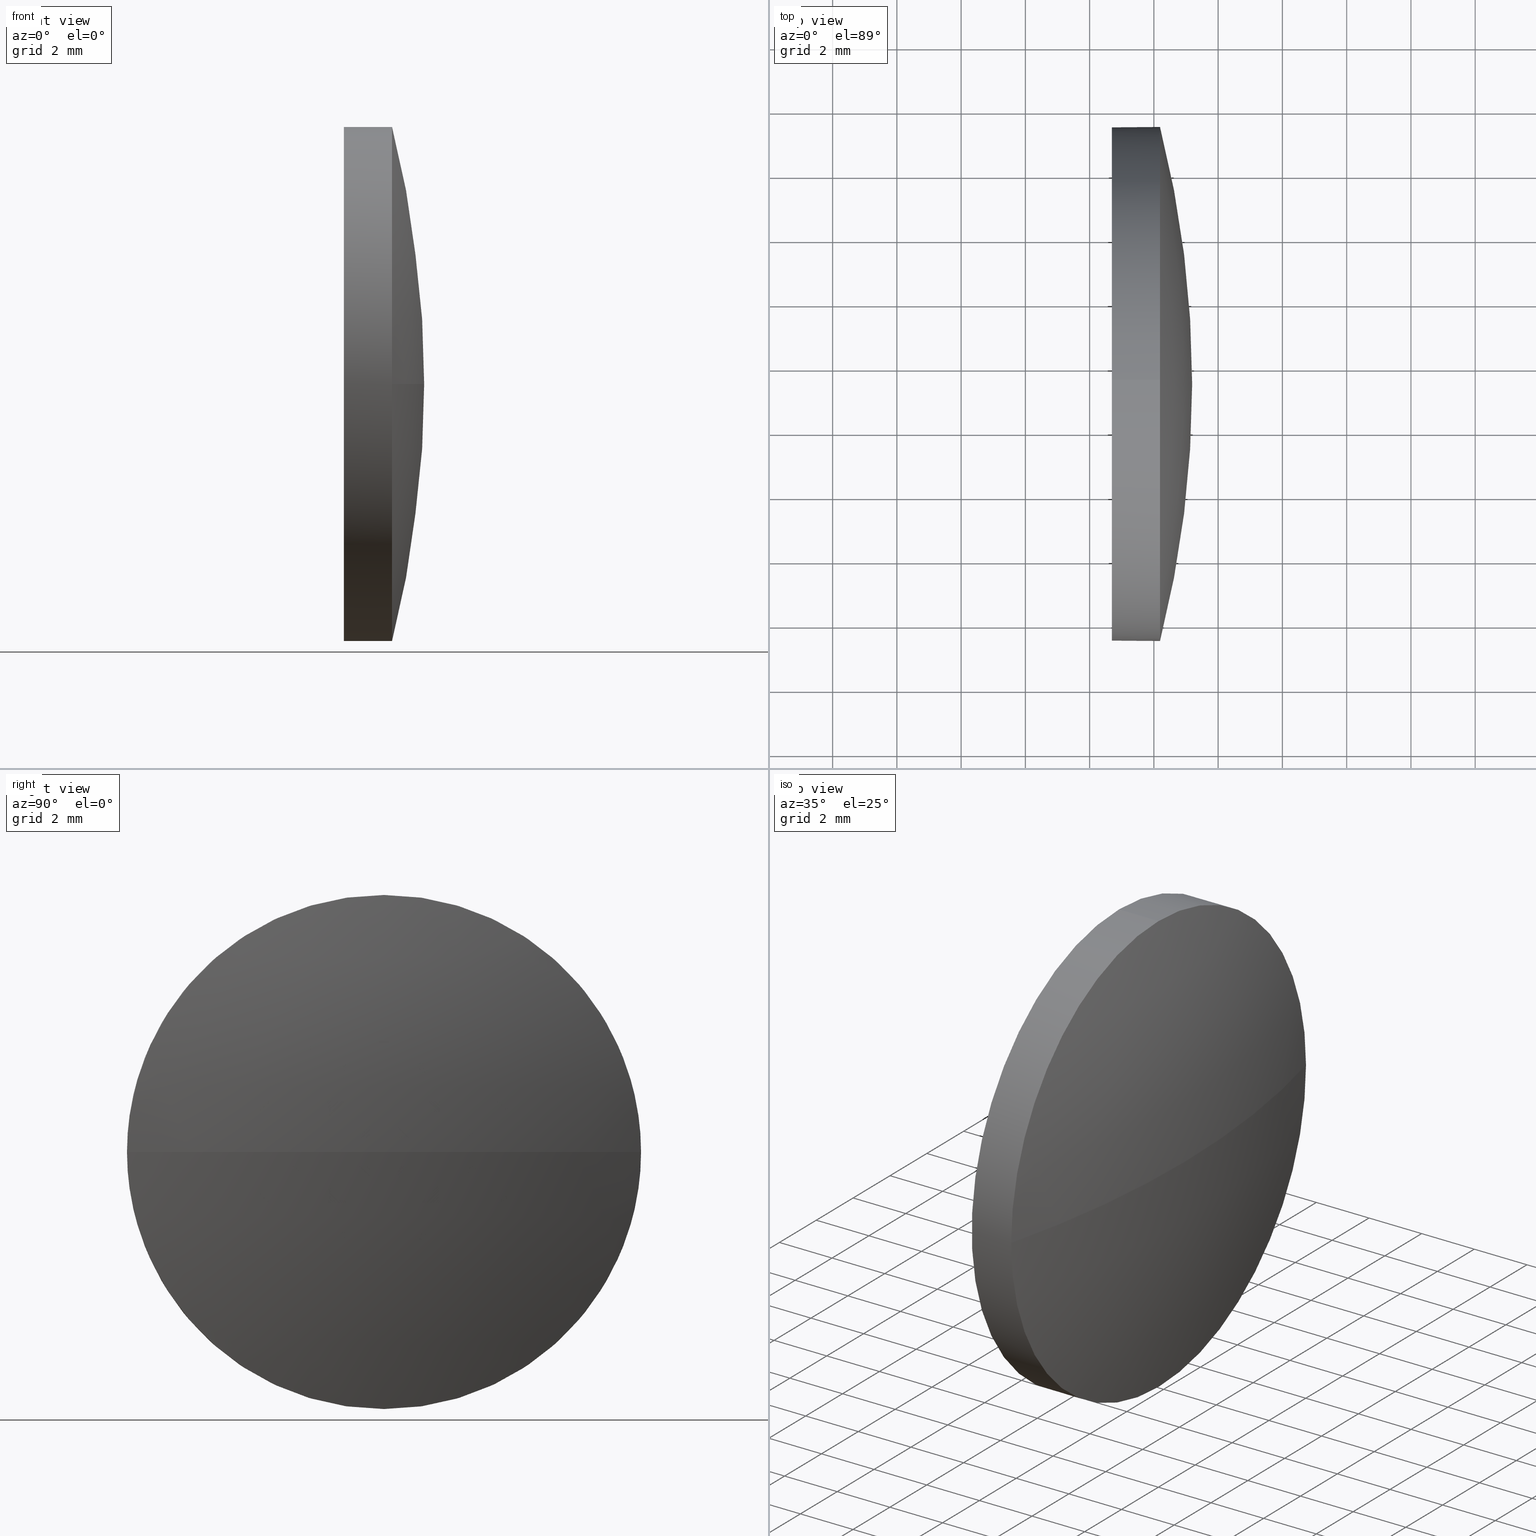
[diagram: canonical four-view strip — front | top / right | iso, engineering-drawing reading convention]
A machine part, canonical four-view strip (front | top / right | iso — engineering-drawing reading convention). The complete STEP part file that produces these views, byte-faithful:
ISO-10303-21;
HEADER;
FILE_DESCRIPTION (( 'STEP AP214' ),
    '1' );
FILE_NAME ('100030.STEP',
    '2019-04-22T08:35:40',
    ( '' ),
    ( '' ),
    'SwSTEP 2.0',
    'SolidWorks 2016',
    '' );
FILE_SCHEMA (( 'AUTOMOTIVE_DESIGN' ));
ENDSEC;

DATA;
#1 = VERTEX_POINT ( 'NONE', #163 ) ;
#2 = CIRCLE ( 'NONE', #118, 7.999999999999979600 ) ;
#3 = MECHANICAL_DESIGN_GEOMETRIC_PRESENTATION_REPRESENTATION (  '', ( #50 ), #15 ) ;
#4 = VERTEX_POINT ( 'NONE', #40 ) ;
#5 = PRODUCT_DEFINITION_FORMATION_WITH_SPECIFIED_SOURCE ( '�κ�', '', #107, .NOT_KNOWN. ) ;
#6 = ORIENTED_EDGE ( 'NONE', *, *, #174, .T. ) ;
#7 = AXIS2_PLACEMENT_3D ( 'NONE', #160, #134, #11 ) ;
#8 = CIRCLE ( 'NONE', #178, 7.999999999999979600 ) ;
#9 = EDGE_CURVE ( 'NONE', #12, #4, #2, .T. ) ;
#10 =( GEOMETRIC_REPRESENTATION_CONTEXT ( 3 ) GLOBAL_UNCERTAINTY_ASSIGNED_CONTEXT ( ( #153 ) ) GLOBAL_UNIT_ASSIGNED_CONTEXT ( ( #92, #90, #100 ) ) REPRESENTATION_CONTEXT ( 'NONE', 'WORKASPACE' ) );
#11 = DIRECTION ( 'NONE',  ( 0.0000000000000000000, 0.0000000000000000000, 1.000000000000000000 ) ) ;
#12 = VERTEX_POINT ( 'NONE', #124 ) ;
#13 = DIRECTION ( 'NONE',  ( 0.0000000000000000000, 0.0000000000000000000, 1.000000000000000000 ) ) ;
#14 = APPLICATION_PROTOCOL_DEFINITION ( 'draft international standard', 'automotive_design', 1998, #127 ) ;
#15 =( GEOMETRIC_REPRESENTATION_CONTEXT ( 3 ) GLOBAL_UNCERTAINTY_ASSIGNED_CONTEXT ( ( #166 ) ) GLOBAL_UNIT_ASSIGNED_CONTEXT ( ( #154, #59, #137 ) ) REPRESENTATION_CONTEXT ( 'NONE', 'WORKASPACE' ) );
#16 = APPLICATION_PROTOCOL_DEFINITION ( 'draft international standard', 'automotive_design', 1998, #101 ) ;
#17 = DIRECTION ( 'NONE',  ( 0.0000000000000000000, 0.0000000000000000000, 1.000000000000000000 ) ) ;
#18 = EDGE_CURVE ( 'NONE', #1, #4, #48, .T. ) ;
#19 = AXIS2_PLACEMENT_3D ( 'NONE', #169, #113, #45 ) ;
#20 = SHAPE_DEFINITION_REPRESENTATION ( #121, #146 ) ;
#21 = CARTESIAN_POINT ( 'NONE',  ( 620.6910119577842100, 125.4531705715125000, 0.0000000000000000000 ) ) ;
#22 = ORIENTED_EDGE ( 'NONE', *, *, #27, .F. ) ;
#23 = EDGE_CURVE ( 'NONE', #116, #104, #119, .T. ) ;
#24 = FILL_AREA_STYLE ('',( #68 ) ) ;
#25 = CARTESIAN_POINT ( 'NONE',  ( 620.6910119577842100, 125.4531705715125000, 0.0000000000000000000 ) ) ;
#26 = DIRECTION ( 'NONE',  ( 0.0000000000000000000, 0.0000000000000000000, 1.000000000000000000 ) ) ;
#27 = EDGE_CURVE ( 'NONE', #114, #1, #141, .T. ) ;
#28 = DIRECTION ( 'NONE',  ( 0.0000000000000000000, 0.0000000000000000000, -1.000000000000000000 ) ) ;
#29 = CARTESIAN_POINT ( 'NONE',  ( 622.1910119577842100, 125.4531705715125000, 0.0000000000000000000 ) ) ;
#30 = ORIENTED_EDGE ( 'NONE', *, *, #180, .F. ) ;
#31 = EDGE_CURVE ( 'NONE', #63, #114, #135, .T. ) ;
#32 = UNCERTAINTY_MEASURE_WITH_UNIT (LENGTH_MEASURE( 1.000000000000000100E-005 ), #47, 'distance_accuracy_value', 'NONE');
#33 = EDGE_CURVE ( 'NONE', #1, #104, #129, .T. ) ;
#34 = DIRECTION ( 'NONE',  ( -1.000000000000000000, -0.0000000000000000000, -0.0000000000000000000 ) ) ;
#35 = AXIS2_PLACEMENT_3D ( 'NONE', #112, #42, #91 ) ;
#36 = ORIENTED_EDGE ( 'NONE', *, *, #174, .F. ) ;
#37 = DIRECTION ( 'NONE',  ( -0.0000000000000000000, 0.0000000000000000000, 1.000000000000000000 ) ) ;
#38 = DIRECTION ( 'NONE',  ( 0.0000000000000000000, 0.0000000000000000000, 1.000000000000000000 ) ) ;
#39 = ORIENTED_EDGE ( 'NONE', *, *, #180, .T. ) ;
#40 = CARTESIAN_POINT ( 'NONE',  ( 620.6910119577842100, 125.4531705715125000, 7.999999999999979600 ) ) ;
#41 = PRESENTATION_LAYER_ASSIGNMENT (  '', '', ( #50 ) ) ;
#42 = DIRECTION ( 'NONE',  ( -0.0000000000000000000, 0.0000000000000000000, -1.000000000000000000 ) ) ;
#43 = AXIS2_PLACEMENT_3D ( 'NONE', #83, #97, #52 ) ;
#44 = ORIENTED_EDGE ( 'NONE', *, *, #72, .F. ) ;
#45 = DIRECTION ( 'NONE',  ( 0.0000000000000000000, 1.000000000000000000, 1.224646799147353200E-016 ) ) ;
#46 = ORIENTED_EDGE ( 'NONE', *, *, #33, .F. ) ;
#47 =( LENGTH_UNIT ( ) NAMED_UNIT ( * ) SI_UNIT ( .MILLI., .METRE. ) );
#48 = LINE ( 'NONE', #162, #145 ) ;
#49 = PRODUCT_DEFINITION_CONTEXT ( 'detailed design', #127, 'design' ) ;
#50 = STYLED_ITEM ( 'NONE', ( #130 ), #117 ) ;
#51 = SPHERICAL_SURFACE ( 'NONE', #158, 32.50000000000008500 ) ;
#52 = DIRECTION ( 'NONE',  ( 0.0000000000000000000, 0.0000000000000000000, 1.000000000000000000 ) ) ;
#53 = ORIENTED_EDGE ( 'NONE', *, *, #33, .T. ) ;
#54 = COLOUR_RGB ( '',1.000000000000000000, 1.000000000000000000, 1.000000000000000000 ) ;
#55 = DIRECTION ( 'NONE',  ( 0.0000000000000000000, 1.000000000000000000, 0.0000000000000000000 ) ) ;
#56 = SURFACE_STYLE_FILL_AREA ( #24 ) ;
#57 = SPHERICAL_SURFACE ( 'NONE', #35, 32.50000000000008500 ) ;
#58 = SURFACE_STYLE_USAGE ( .BOTH. , #73 ) ;
#59 =( NAMED_UNIT ( * ) PLANE_ANGLE_UNIT ( ) SI_UNIT ( $, .RADIAN. ) );
#60 = AXIS2_PLACEMENT_3D ( 'NONE', #89, #88, #125 ) ;
#61 = ORIENTED_EDGE ( 'NONE', *, *, #23, .F. ) ;
#62 =( GEOMETRIC_REPRESENTATION_CONTEXT ( 3 ) GLOBAL_UNCERTAINTY_ASSIGNED_CONTEXT ( ( #32 ) ) GLOBAL_UNIT_ASSIGNED_CONTEXT ( ( #47, #69, #155 ) ) REPRESENTATION_CONTEXT ( 'NONE', 'WORKASPACE' ) );
#63 = VERTEX_POINT ( 'NONE', #123 ) ;
#64 = PRODUCT_DEFINITION ( 'δ֪', '', #5, #49 ) ;
#65 = CARTESIAN_POINT ( 'NONE',  ( 590.6910119577842100, 125.4531705715125000, 0.0000000000000000000 ) ) ;
#66 = DIRECTION ( 'NONE',  ( -0.0000000000000000000, 0.0000000000000000000, -1.000000000000000000 ) ) ;
#67 = COLOUR_RGB ( '',1.000000000000000000, 1.000000000000000000, 1.000000000000000000 ) ;
#68 = FILL_AREA_STYLE_COLOUR ( '', #67 ) ;
#69 =( NAMED_UNIT ( * ) PLANE_ANGLE_UNIT ( ) SI_UNIT ( $, .RADIAN. ) );
#70 = ADVANCED_FACE ( 'NONE', ( #106 ), #51, .T. ) ;
#71 = FACE_OUTER_BOUND ( 'NONE', #167, .T. ) ;
#72 = EDGE_CURVE ( 'NONE', #4, #12, #77, .T. ) ;
#73 = SURFACE_SIDE_STYLE ('',( #56 ) ) ;
#74 = DIRECTION ( 'NONE',  ( -1.000000000000000000, -0.0000000000000000000, -0.0000000000000000000 ) ) ;
#75 = SURFACE_STYLE_USAGE ( .BOTH. , #168 ) ;
#76 = STYLED_ITEM ( 'NONE', ( #103 ), #146 ) ;
#77 = CIRCLE ( 'NONE', #164, 7.999999999999979600 ) ;
#78 = EDGE_LOOP ( 'NONE', ( #176, #39, #44, #179, #53 ) ) ;
#79 = AXIS2_PLACEMENT_3D ( 'NONE', #25, #152, #28 ) ;
#80 = AXIS2_PLACEMENT_3D ( 'NONE', #175, #98, #99 ) ;
#81 = EDGE_LOOP ( 'NONE', ( #61, #6, #126, #156 ) ) ;
#82 = ORIENTED_EDGE ( 'NONE', *, *, #72, .T. ) ;
#83 = CARTESIAN_POINT ( 'NONE',  ( 622.1910119577842100, 125.4531705715125000, 0.0000000000000000000 ) ) ;
#84 = AXIS2_PLACEMENT_3D ( 'NONE', #109, #37, #148 ) ;
#85 = CARTESIAN_POINT ( 'NONE',  ( 622.1910119577842100, 133.4531705715125200, 0.0000000000000000000 ) ) ;
#86 = MECHANICAL_DESIGN_GEOMETRIC_PRESENTATION_REPRESENTATION (  '', ( #76 ), #10 ) ;
#87 = CARTESIAN_POINT ( 'NONE',  ( 622.1910119577842100, 117.4531705715125200, -9.797174393178823700E-016 ) ) ;
#88 = DIRECTION ( 'NONE',  ( -1.000000000000000000, -0.0000000000000000000, -0.0000000000000000000 ) ) ;
#89 = CARTESIAN_POINT ( 'NONE',  ( 616.9657433374219400, 125.4531705715125000, 0.0000000000000000000 ) ) ;
#90 =( NAMED_UNIT ( * ) PLANE_ANGLE_UNIT ( ) SI_UNIT ( $, .RADIAN. ) );
#91 = DIRECTION ( 'NONE',  ( 0.0000000000000000000, 1.000000000000000000, 0.0000000000000000000 ) ) ;
#92 =( LENGTH_UNIT ( ) NAMED_UNIT ( * ) SI_UNIT ( .MILLI., .METRE. ) );
#93 = CYLINDRICAL_SURFACE ( 'NONE', #60, 7.999999999999979600 ) ;
#94 = ORIENTED_EDGE ( 'NONE', *, *, #23, .T. ) ;
#95 = EDGE_CURVE ( 'NONE', #104, #63, #8, .T. ) ;
#96 = PRESENTATION_LAYER_ASSIGNMENT (  '', '', ( #76 ) ) ;
#97 = DIRECTION ( 'NONE',  ( -1.000000000000000000, -0.0000000000000000000, -0.0000000000000000000 ) ) ;
#98 = DIRECTION ( 'NONE',  ( -1.000000000000000000, -0.0000000000000000000, -0.0000000000000000000 ) ) ;
#99 = DIRECTION ( 'NONE',  ( 0.0000000000000000000, 0.0000000000000000000, 1.000000000000000000 ) ) ;
#100 =( NAMED_UNIT ( * ) SI_UNIT ( $, .STERADIAN. ) SOLID_ANGLE_UNIT ( ) );
#101 = APPLICATION_CONTEXT ( 'automotive_design' ) ;
#102 = ORIENTED_EDGE ( 'NONE', *, *, #9, .T. ) ;
#103 = PRESENTATION_STYLE_ASSIGNMENT (( #75 ) ) ;
#104 = VERTEX_POINT ( 'NONE', #85 ) ;
#105 = PRODUCT_RELATED_PRODUCT_CATEGORY ( 'part', '', ( #107 ) ) ;
#106 = FACE_OUTER_BOUND ( 'NONE', #81, .T. ) ;
#107 = PRODUCT ( '100030', '100030', '', ( #140 ) ) ;
#108 = LINE ( 'NONE', #115, #142 ) ;
#109 = CARTESIAN_POINT ( 'NONE',  ( 590.6910119577842100, 125.4531705715125000, 0.0000000000000000000 ) ) ;
#110 = DIRECTION ( 'NONE',  ( -1.000000000000000000, -0.0000000000000000000, -0.0000000000000000000 ) ) ;
#111 = CARTESIAN_POINT ( 'NONE',  ( 622.1910119577842100, 125.4531705715125000, 0.0000000000000000000 ) ) ;
#112 = CARTESIAN_POINT ( 'NONE',  ( 590.6910119577842100, 125.4531705715125000, 0.0000000000000000000 ) ) ;
#113 = DIRECTION ( 'NONE',  ( 0.0000000000000000000, 1.224646799147353200E-016, -1.000000000000000000 ) ) ;
#114 = VERTEX_POINT ( 'NONE', #87 ) ;
#115 = CARTESIAN_POINT ( 'NONE',  ( 616.9657433374219400, 125.4531705715125000, -7.999999999999979600 ) ) ;
#116 = VERTEX_POINT ( 'NONE', #138 ) ;
#117 = MANIFOLD_SOLID_BREP ( '��ת1', #139 ) ;
#118 = AXIS2_PLACEMENT_3D ( 'NONE', #159, #151, #13 ) ;
#119 = CIRCLE ( 'NONE', #84, 32.50000000000008500 ) ;
#120 = FACE_OUTER_BOUND ( 'NONE', #122, .T. ) ;
#121 = PRODUCT_DEFINITION_SHAPE ( 'NONE', 'NONE',  #64 ) ;
#122 = EDGE_LOOP ( 'NONE', ( #36, #94, #46, #22 ) ) ;
#123 = CARTESIAN_POINT ( 'NONE',  ( 622.1910119577842100, 125.4531705715125000, -7.999999999999979600 ) ) ;
#124 = CARTESIAN_POINT ( 'NONE',  ( 620.6910119577842100, 125.4531705715125000, -7.999999999999979600 ) ) ;
#125 = DIRECTION ( 'NONE',  ( 0.0000000000000000000, 0.0000000000000000000, 1.000000000000000000 ) ) ;
#126 = ORIENTED_EDGE ( 'NONE', *, *, #31, .F. ) ;
#127 = APPLICATION_CONTEXT ( 'automotive_design' ) ;
#128 = DIRECTION ( 'NONE',  ( -1.000000000000000000, -0.0000000000000000000, -0.0000000000000000000 ) ) ;
#129 = CIRCLE ( 'NONE', #144, 7.999999999999979600 ) ;
#130 = PRESENTATION_STYLE_ASSIGNMENT (( #58 ) ) ;
#131 = DIRECTION ( 'NONE',  ( 0.0000000000000000000, 0.0000000000000000000, 1.000000000000000000 ) ) ;
#132 = ORIENTED_EDGE ( 'NONE', *, *, #9, .F. ) ;
#133 = ADVANCED_FACE ( 'NONE', ( #120 ), #57, .T. ) ;
#134 = DIRECTION ( 'NONE',  ( -1.000000000000000000, -0.0000000000000000000, -0.0000000000000000000 ) ) ;
#135 = CIRCLE ( 'NONE', #43, 7.999999999999979600 ) ;
#136 = SURFACE_STYLE_FILL_AREA ( #157 ) ;
#137 =( NAMED_UNIT ( * ) SI_UNIT ( $, .STERADIAN. ) SOLID_ANGLE_UNIT ( ) );
#138 = CARTESIAN_POINT ( 'NONE',  ( 623.1910119577842100, 125.4531705715125000, 0.0000000000000000000 ) ) ;
#139 = CLOSED_SHELL ( 'NONE', ( #182, #70, #133, #172, #184 ) ) ;
#140 = PRODUCT_CONTEXT ( 'NONE', #101, 'mechanical' ) ;
#141 = CIRCLE ( 'NONE', #7, 7.999999999999979600 ) ;
#142 = VECTOR ( 'NONE', #74, 1000.000000000000000 ) ;
#143 = ORIENTED_EDGE ( 'NONE', *, *, #31, .T. ) ;
#144 = AXIS2_PLACEMENT_3D ( 'NONE', #111, #110, #38 ) ;
#145 = VECTOR ( 'NONE', #149, 1000.000000000000000 ) ;
#146 = ADVANCED_BREP_SHAPE_REPRESENTATION ( '100030', ( #117, #150 ), #62 ) ;
#147 = ORIENTED_EDGE ( 'NONE', *, *, #18, .T. ) ;
#148 = DIRECTION ( 'NONE',  ( 1.000000000000000000, 0.0000000000000000000, 0.0000000000000000000 ) ) ;
#149 = DIRECTION ( 'NONE',  ( -1.000000000000000000, -0.0000000000000000000, -0.0000000000000000000 ) ) ;
#150 = AXIS2_PLACEMENT_3D ( 'NONE', #183, #17, #186 ) ;
#151 = DIRECTION ( 'NONE',  ( -1.000000000000000000, -0.0000000000000000000, -0.0000000000000000000 ) ) ;
#152 = DIRECTION ( 'NONE',  ( 1.000000000000000000, 0.0000000000000000000, 0.0000000000000000000 ) ) ;
#153 = UNCERTAINTY_MEASURE_WITH_UNIT (LENGTH_MEASURE( 1.000000000000000100E-005 ), #92, 'distance_accuracy_value', 'NONE');
#154 =( LENGTH_UNIT ( ) NAMED_UNIT ( * ) SI_UNIT ( .MILLI., .METRE. ) );
#155 =( NAMED_UNIT ( * ) SI_UNIT ( $, .STERADIAN. ) SOLID_ANGLE_UNIT ( ) );
#156 = ORIENTED_EDGE ( 'NONE', *, *, #95, .F. ) ;
#157 = FILL_AREA_STYLE ('',( #171 ) ) ;
#158 = AXIS2_PLACEMENT_3D ( 'NONE', #65, #66, #55 ) ;
#159 = CARTESIAN_POINT ( 'NONE',  ( 620.6910119577842100, 125.4531705715125000, 0.0000000000000000000 ) ) ;
#160 = CARTESIAN_POINT ( 'NONE',  ( 622.1910119577842100, 125.4531705715125000, 0.0000000000000000000 ) ) ;
#161 = EDGE_LOOP ( 'NONE', ( #30, #143, #181, #147, #132 ) ) ;
#162 = CARTESIAN_POINT ( 'NONE',  ( 616.9657433374219400, 125.4531705715125000, 7.999999999999979600 ) ) ;
#163 = CARTESIAN_POINT ( 'NONE',  ( 622.1910119577842100, 125.4531705715125000, 7.999999999999979600 ) ) ;
#164 = AXIS2_PLACEMENT_3D ( 'NONE', #21, #34, #131 ) ;
#165 = CIRCLE ( 'NONE', #19, 32.50000000000008500 ) ;
#166 = UNCERTAINTY_MEASURE_WITH_UNIT (LENGTH_MEASURE( 1.000000000000000100E-005 ), #154, 'distance_accuracy_value', 'NONE');
#167 = EDGE_LOOP ( 'NONE', ( #82, #102 ) ) ;
#168 = SURFACE_SIDE_STYLE ('',( #136 ) ) ;
#169 = CARTESIAN_POINT ( 'NONE',  ( 590.6910119577842100, 125.4531705715125000, 0.0000000000000000000 ) ) ;
#170 = FACE_OUTER_BOUND ( 'NONE', #78, .T. ) ;
#171 = FILL_AREA_STYLE_COLOUR ( '', #54 ) ;
#172 = ADVANCED_FACE ( 'NONE', ( #185 ), #177, .T. ) ;
#173 = PLANE ( 'NONE',  #79 ) ;
#174 = EDGE_CURVE ( 'NONE', #116, #114, #165, .T. ) ;
#175 = CARTESIAN_POINT ( 'NONE',  ( 616.9657433374219400, 125.4531705715125000, 0.0000000000000000000 ) ) ;
#176 = ORIENTED_EDGE ( 'NONE', *, *, #95, .T. ) ;
#177 = CYLINDRICAL_SURFACE ( 'NONE', #80, 7.999999999999979600 ) ;
#178 = AXIS2_PLACEMENT_3D ( 'NONE', #29, #128, #26 ) ;
#179 = ORIENTED_EDGE ( 'NONE', *, *, #18, .F. ) ;
#180 = EDGE_CURVE ( 'NONE', #63, #12, #108, .T. ) ;
#181 = ORIENTED_EDGE ( 'NONE', *, *, #27, .T. ) ;
#182 = ADVANCED_FACE ( 'NONE', ( #170 ), #93, .T. ) ;
#183 = CARTESIAN_POINT ( 'NONE',  ( 0.0000000000000000000, 0.0000000000000000000, 0.0000000000000000000 ) ) ;
#184 = ADVANCED_FACE ( 'NONE', ( #71 ), #173, .F. ) ;
#185 = FACE_OUTER_BOUND ( 'NONE', #161, .T. ) ;
#186 = DIRECTION ( 'NONE',  ( 1.000000000000000000, 0.0000000000000000000, 0.0000000000000000000 ) ) ;
ENDSEC;
END-ISO-10303-21;
